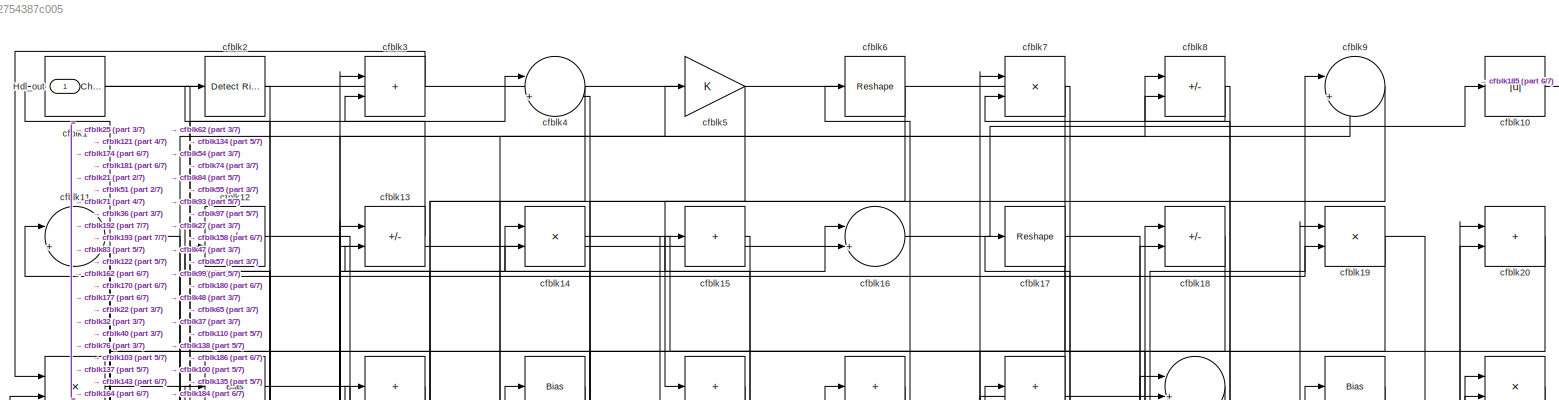
[diagram: root canvas - part 1/7, full width, top band]
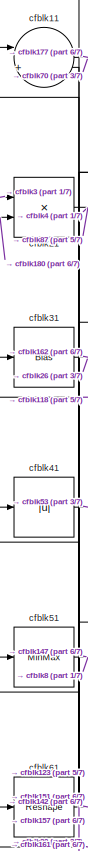
[diagram: root canvas - part 2/7, top left region]
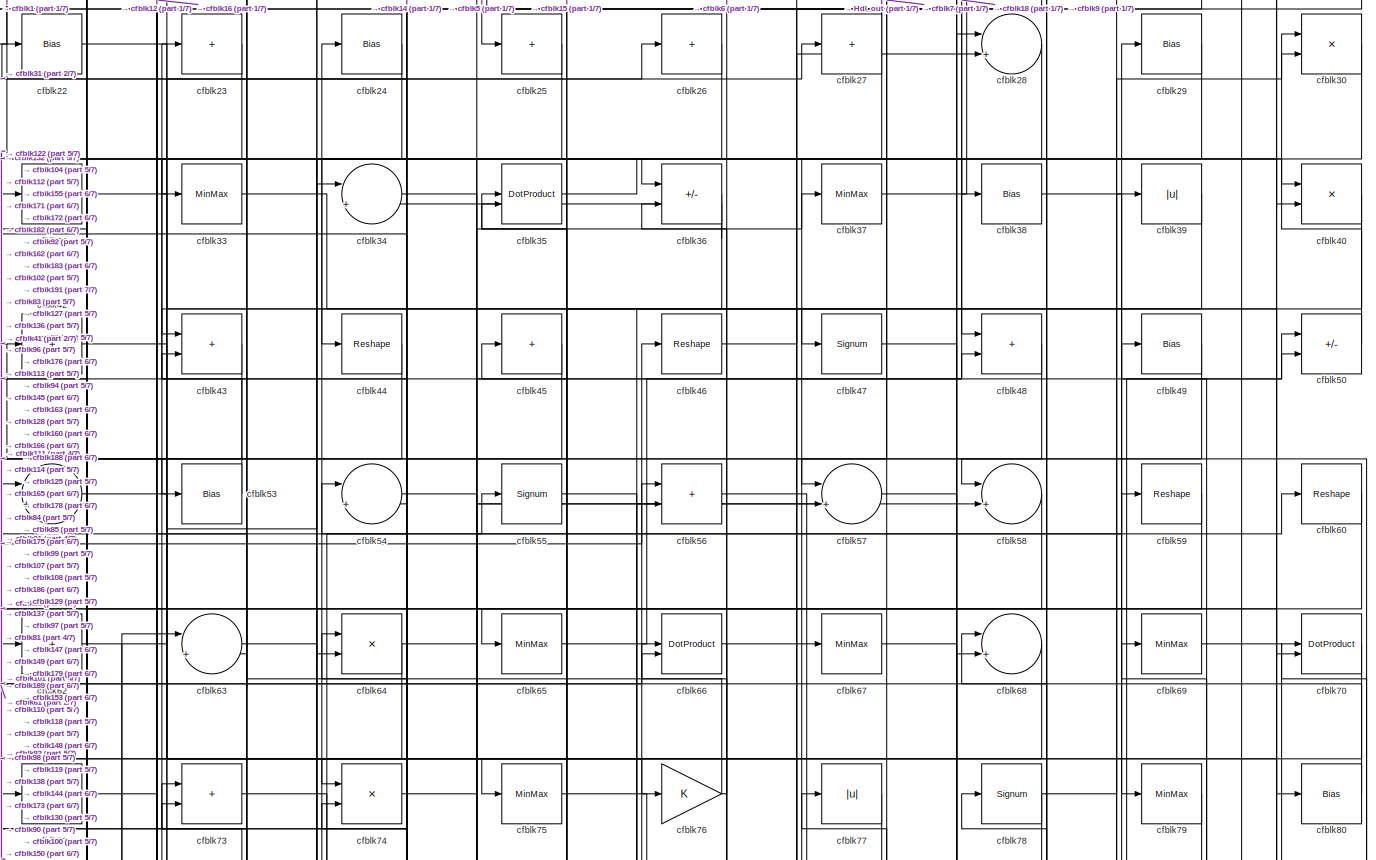
[diagram: root canvas - part 3/7, full width, top band]
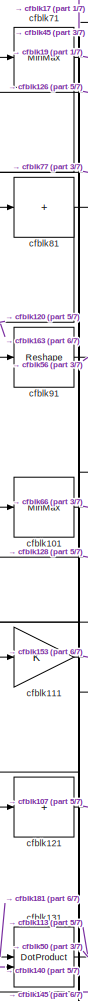
[diagram: root canvas - part 4/7, middle left region]
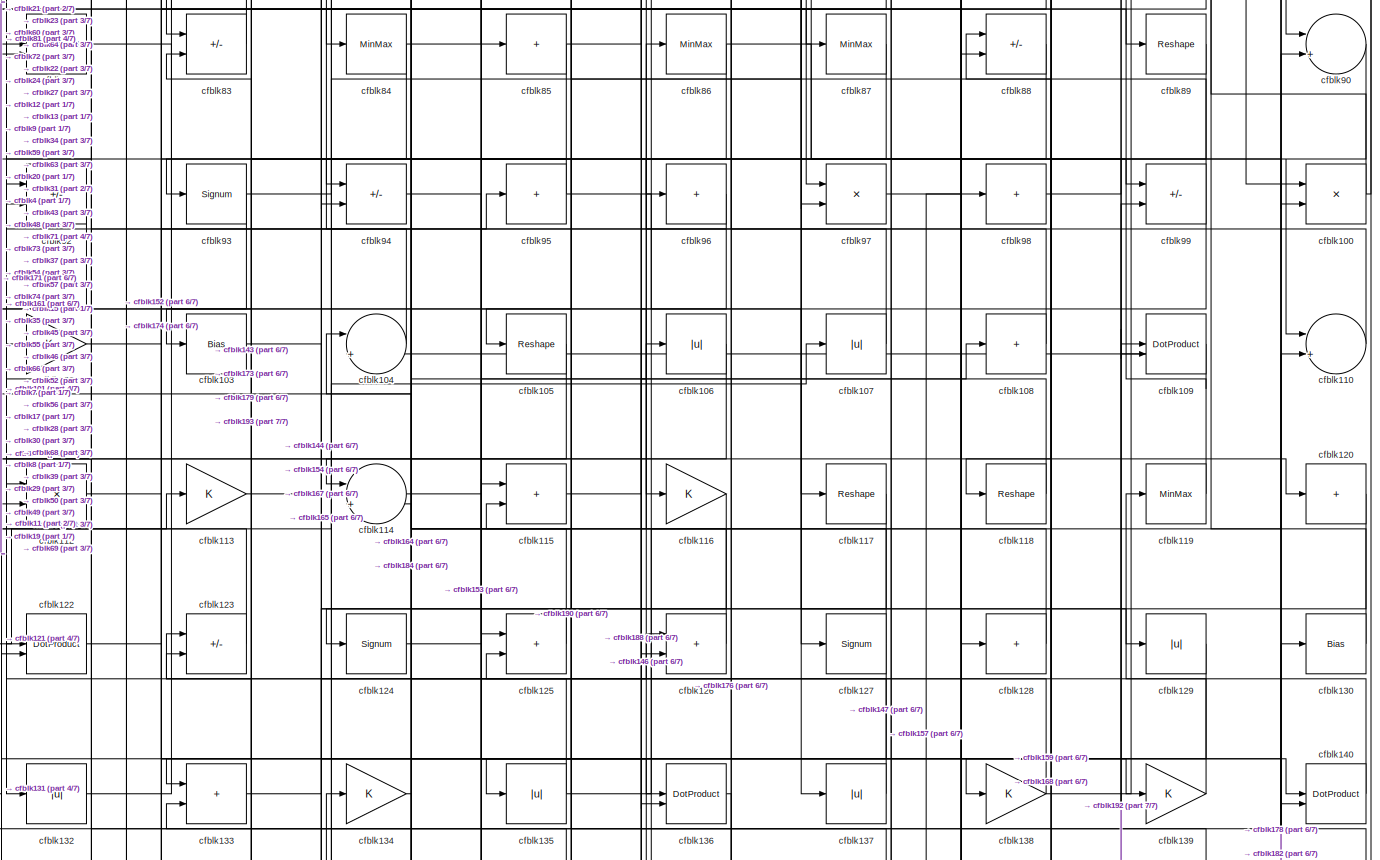
[diagram: root canvas - part 5/7, full width, middle band]
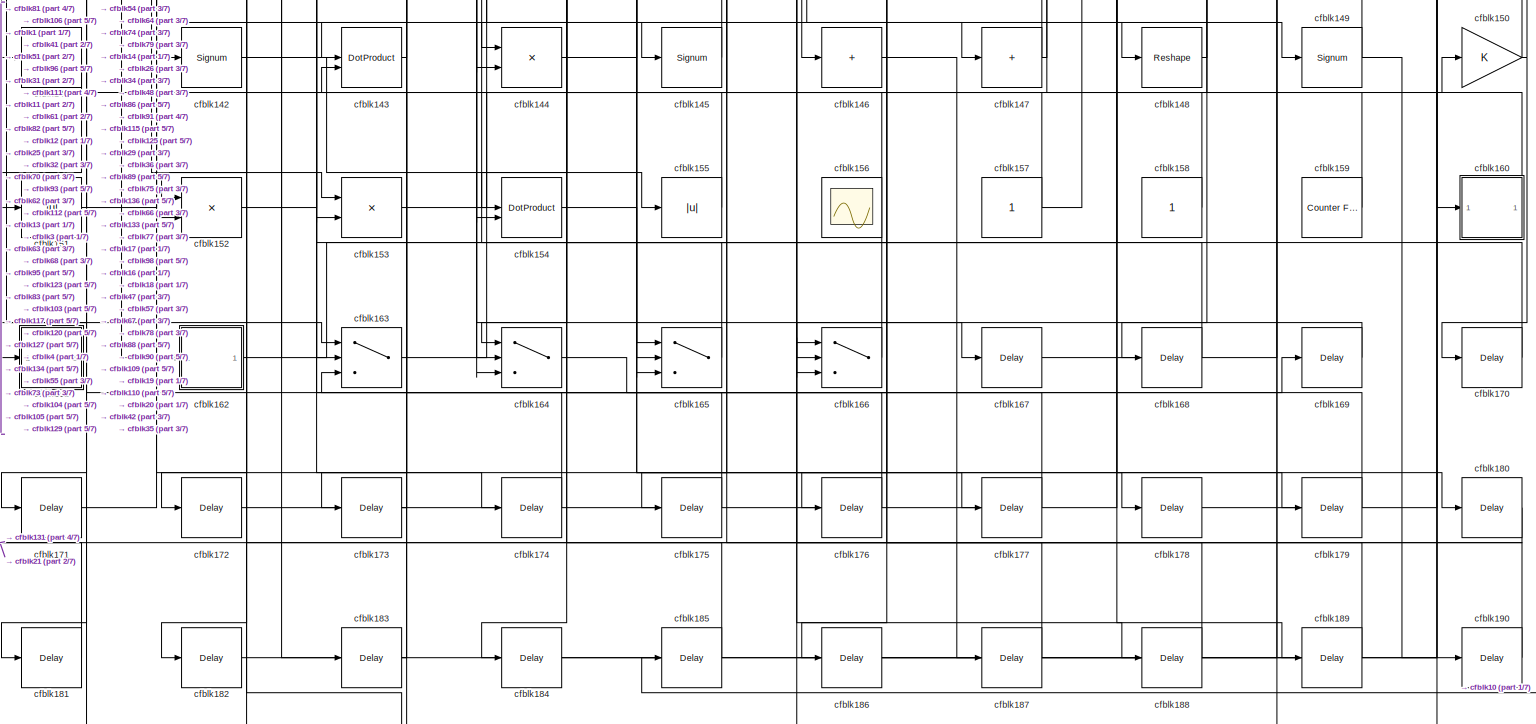
[diagram: root canvas - part 6/7, full width, bottom band]
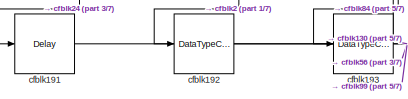
[diagram: root canvas - part 7/7, bottom left region]
MODEL slx_72754387c005
KIND model
CONFIG AbsTol = auto
CONFIG EnableMultiTasking = off
CONFIG FixedStep = auto
CONFIG MaxStep = auto
CONFIG MinStep = auto
CONFIG RelTol = 1e-3
CONFIG SampleTimeConstraint = Unconstrained
CONFIG SolverName = VariableStepAuto
CONFIG StartTime = 0.0
CONFIG StopTime = 10.0
BLOCK [Outport] Hdl_out
  OutDataTypeStr = uint8
BLOCK [Reference] cfblk1  REF=simulink/Logic and Bit
Operations/Detect
Change
  LibrarySourceBlock = hdlsllib/Logic and Bit\nOperations/Detect\nChange
  SourceBlock = simulink/Logic and Bit\nOperations/Detect\nChange
  SourceType = Detect Change
BLOCK [Abs] cfblk10
  OutDataTypeStr = uint8
  SaturateOnIntegerOverflow = off
BLOCK [Product] cfblk100
  Inputs = */
  OutDataTypeStr = uint8
  RndMeth = Zero
  SaturateOnIntegerOverflow = on
BLOCK [MinMax] cfblk101
  OutDataTypeStr = uint8
BLOCK [Gain] cfblk102
  OutDataTypeStr = uint8
BLOCK [Bias] cfblk103
  Bias = 0.0
  SaturateOnIntegerOverflow = off
BLOCK [Sum] cfblk104
  Inputs = |++
  OutDataTypeStr = uint8
BLOCK [Reshape] cfblk105
BLOCK [Abs] cfblk106
  OutDataTypeStr = uint8
  SaturateOnIntegerOverflow = off
BLOCK [Abs] cfblk107
  OutDataTypeStr = uint8
  SaturateOnIntegerOverflow = off
BLOCK [Sum] cfblk108
  IconShape = rectangular
  Inputs = +
  OutDataTypeStr = uint8
BLOCK [DotProduct] cfblk109
  OutDataTypeStr = uint8
BLOCK [Sum] cfblk11
  Inputs = |++
  OutDataTypeStr = uint8
BLOCK [Sum] cfblk110
  Inputs = |++
  OutDataTypeStr = uint8
BLOCK [Gain] cfblk111
  OutDataTypeStr = uint8
BLOCK [Product] cfblk112
  Inputs = */
  OutDataTypeStr = uint8
  RndMeth = Zero
  SaturateOnIntegerOverflow = on
BLOCK [Gain] cfblk113
  OutDataTypeStr = uint8
BLOCK [Sum] cfblk114
  Inputs = |++
  OutDataTypeStr = uint8
BLOCK [Sum] cfblk115
  IconShape = rectangular
  OutDataTypeStr = uint8
BLOCK [Gain] cfblk116
  OutDataTypeStr = uint8
BLOCK [Reshape] cfblk117
BLOCK [Reshape] cfblk118
BLOCK [MinMax] cfblk119
  OutDataTypeStr = uint8
BLOCK [Sum] cfblk12
  IconShape = rectangular
  Inputs = +-
  OutDataTypeStr = uint8
BLOCK [Sum] cfblk120
  IconShape = rectangular
  Inputs = +
  OutDataTypeStr = uint8
BLOCK [Sum] cfblk121
  IconShape = rectangular
  Inputs = +
  OutDataTypeStr = uint8
BLOCK [DotProduct] cfblk122
  OutDataTypeStr = uint8
BLOCK [Sum] cfblk123
  IconShape = rectangular
  Inputs = +-
  OutDataTypeStr = uint8
BLOCK [Signum] cfblk124
BLOCK [Sum] cfblk125
  IconShape = rectangular
  OutDataTypeStr = uint8
BLOCK [Sum] cfblk126
  IconShape = rectangular
  OutDataTypeStr = uint8
BLOCK [Signum] cfblk127
BLOCK [Sum] cfblk128
  IconShape = rectangular
  Inputs = +
  OutDataTypeStr = uint8
BLOCK [Abs] cfblk129
  OutDataTypeStr = uint8
  SaturateOnIntegerOverflow = off
BLOCK [Sum] cfblk13
  IconShape = rectangular
  Inputs = +-
  OutDataTypeStr = uint8
BLOCK [Bias] cfblk130
  Bias = 0.0
  SaturateOnIntegerOverflow = off
BLOCK [DotProduct] cfblk131
  OutDataTypeStr = uint8
BLOCK [Abs] cfblk132
  OutDataTypeStr = uint8
  SaturateOnIntegerOverflow = off
BLOCK [Sum] cfblk133
  IconShape = rectangular
  OutDataTypeStr = uint8
BLOCK [Gain] cfblk134
  OutDataTypeStr = uint8
BLOCK [Abs] cfblk135
  OutDataTypeStr = uint8
  SaturateOnIntegerOverflow = off
BLOCK [DotProduct] cfblk136
  OutDataTypeStr = uint8
BLOCK [Abs] cfblk137
  OutDataTypeStr = uint8
  SaturateOnIntegerOverflow = off
BLOCK [Gain] cfblk138
  OutDataTypeStr = uint8
BLOCK [Gain] cfblk139
  OutDataTypeStr = uint8
BLOCK [Product] cfblk14
  Inputs = */
  OutDataTypeStr = uint8
  RndMeth = Zero
  SaturateOnIntegerOverflow = on
BLOCK [DotProduct] cfblk140
  OutDataTypeStr = uint8
BLOCK [Sum] cfblk141
  IconShape = rectangular
  Inputs = +
  OutDataTypeStr = uint8
BLOCK [Signum] cfblk142
BLOCK [DotProduct] cfblk143
  OutDataTypeStr = uint8
BLOCK [Product] cfblk144
  Inputs = */
  OutDataTypeStr = uint8
  RndMeth = Zero
  SaturateOnIntegerOverflow = on
BLOCK [Signum] cfblk145
BLOCK [Sum] cfblk146
  IconShape = rectangular
  Inputs = +
  OutDataTypeStr = uint8
BLOCK [Sum] cfblk147
  IconShape = rectangular
  Inputs = +
  OutDataTypeStr = uint8
BLOCK [Reshape] cfblk148
BLOCK [Signum] cfblk149
BLOCK [Sum] cfblk15
  IconShape = rectangular
  Inputs = +
  OutDataTypeStr = uint8
BLOCK [Gain] cfblk150
  OutDataTypeStr = uint8
BLOCK [Abs] cfblk151
  OutDataTypeStr = uint8
  SaturateOnIntegerOverflow = off
BLOCK [Product] cfblk152
  Inputs = */
  OutDataTypeStr = uint8
  RndMeth = Zero
  SaturateOnIntegerOverflow = on
BLOCK [Product] cfblk153
  Inputs = */
  OutDataTypeStr = uint8
  RndMeth = Zero
  SaturateOnIntegerOverflow = on
BLOCK [DotProduct] cfblk154
  OutDataTypeStr = uint8
BLOCK [Abs] cfblk155
  OutDataTypeStr = uint8
  SaturateOnIntegerOverflow = off
BLOCK [Scope] cfblk156
  Floating = on
  NumInputPorts = 1
  ScopeSpecificationString = Simulink.scopes.TimeScopeBlockCfg('CurrentConfiguration', extmgr.ConfigurationSet(extmgr.Configuration('Core','General UI',true,'FigureColor',[0.156862745098039 0.156862745098039 0.156862745098039]),extmgr.Configuration('Core','Source UI',true),extmgr.Configuration('Sources','WiredSimulink',true,'DataLoggingVariableName','ScopeData1','DataLoggingSaveFormat','StructureWithTime','DataLoggingLimitDat...<+2713ch>
BLOCK [Constant] cfblk157
  OutDataTypeStr = uint8
  SampleTime = -1
BLOCK [Constant] cfblk158
  OutDataTypeStr = uint8
  SampleTime = -1
BLOCK [Reference] cfblk159  REF=hdlsllib/Sources/Counter
Free-Running
  SourceBlock = hdlsllib/Sources/Counter\nFree-Running
  SourceType = Counter Free-Running
BLOCK [Sum] cfblk16
  Inputs = |++
  OutDataTypeStr = uint8
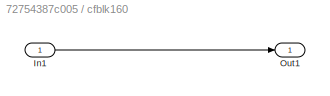
BLOCK [SubSystem] cfblk160
  LibrarySourceBlock = hdlsllib/Ports &\nSubsystems/Subsystem
BLOCK [Inport] cfblk160/In1
BLOCK [Outport] cfblk160/Out1
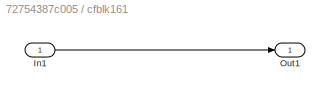
BLOCK [SubSystem] cfblk161
  LibrarySourceBlock = hdlsllib/Ports &\nSubsystems/Subsystem
BLOCK [Inport] cfblk161/In1
BLOCK [Outport] cfblk161/Out1
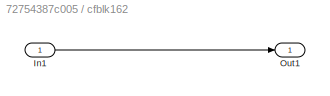
BLOCK [SubSystem] cfblk162
  LibrarySourceBlock = hdlsllib/Ports &\nSubsystems/Subsystem
BLOCK [Inport] cfblk162/In1
BLOCK [Outport] cfblk162/Out1
BLOCK [Switch] cfblk163
  InputSameDT = off
  OutDataTypeStr = uint8
  SaturateOnIntegerOverflow = off
BLOCK [Switch] cfblk164
  InputSameDT = off
  OutDataTypeStr = uint8
  SaturateOnIntegerOverflow = off
BLOCK [Switch] cfblk165
  InputSameDT = off
  OutDataTypeStr = uint8
  SaturateOnIntegerOverflow = off
BLOCK [Switch] cfblk166
  InputSameDT = off
  OutDataTypeStr = uint8
  SaturateOnIntegerOverflow = off
BLOCK [Delay] cfblk167
  InputPortMap = u0
  SampleTime = 1
BLOCK [Delay] cfblk168
  InputPortMap = u0
  SampleTime = 1
BLOCK [Delay] cfblk169
  InputPortMap = u0
  SampleTime = 1
BLOCK [Reshape] cfblk17
BLOCK [Delay] cfblk170
  InputPortMap = u0
  SampleTime = 1
BLOCK [Delay] cfblk171
  InputPortMap = u0
  SampleTime = 1
BLOCK [Delay] cfblk172
  InputPortMap = u0
  SampleTime = 1
BLOCK [Delay] cfblk173
  InputPortMap = u0
  SampleTime = 1
BLOCK [Delay] cfblk174
  InputPortMap = u0
  SampleTime = 1
BLOCK [Delay] cfblk175
  InputPortMap = u0
  SampleTime = 1
BLOCK [Delay] cfblk176
  InputPortMap = u0
  SampleTime = 1
BLOCK [Delay] cfblk177
  InputPortMap = u0
  SampleTime = 1
BLOCK [Delay] cfblk178
  InputPortMap = u0
  SampleTime = 1
BLOCK [Delay] cfblk179
  InputPortMap = u0
  SampleTime = 1
BLOCK [Sum] cfblk18
  IconShape = rectangular
  Inputs = +-
  OutDataTypeStr = uint8
BLOCK [Delay] cfblk180
  InputPortMap = u0
  SampleTime = 1
BLOCK [Delay] cfblk181
  InputPortMap = u0
  SampleTime = 1
BLOCK [Delay] cfblk182
  InputPortMap = u0
  SampleTime = 1
BLOCK [Delay] cfblk183
  InputPortMap = u0
  SampleTime = 1
BLOCK [Delay] cfblk184
  InputPortMap = u0
  SampleTime = 1
BLOCK [Delay] cfblk185
  InputPortMap = u0
  SampleTime = 1
BLOCK [Delay] cfblk186
  InputPortMap = u0
  SampleTime = 1
BLOCK [Delay] cfblk187
  InputPortMap = u0
  SampleTime = 1
BLOCK [Delay] cfblk188
  InputPortMap = u0
  SampleTime = 1
BLOCK [Delay] cfblk189
  InputPortMap = u0
  SampleTime = 1
BLOCK [Product] cfblk19
  Inputs = */
  OutDataTypeStr = uint8
  RndMeth = Zero
  SaturateOnIntegerOverflow = on
BLOCK [Delay] cfblk190
  InputPortMap = u0
  SampleTime = 1
BLOCK [Delay] cfblk191
  InputPortMap = u0
  SampleTime = 1
BLOCK [DataTypeConversion] cfblk192
  OutDataTypeStr = uint8
  RndMeth = Floor
  SaturateOnIntegerOverflow = off
BLOCK [DataTypeConversion] cfblk193
  OutDataTypeStr = uint8
  RndMeth = Floor
  SaturateOnIntegerOverflow = off
BLOCK [Reference] cfblk2  REF=hdlsllib/Logic and Bit
Operations/Detect Rise
Nonnegative
  SourceBlock = hdlsllib/Logic and Bit\nOperations/Detect Rise\nNonnegative
  SourceType = Detect Rise Nonnegative
BLOCK [Sum] cfblk20
  IconShape = rectangular
  OutDataTypeStr = uint8
BLOCK [Product] cfblk21
  Inputs = */
  OutDataTypeStr = uint8
  RndMeth = Zero
  SaturateOnIntegerOverflow = on
BLOCK [Bias] cfblk22
  Bias = 0.0
  SaturateOnIntegerOverflow = off
BLOCK [Sum] cfblk23
  IconShape = rectangular
  Inputs = +
  OutDataTypeStr = uint8
BLOCK [Bias] cfblk24
  Bias = 0.0
  SaturateOnIntegerOverflow = off
BLOCK [Sum] cfblk25
  IconShape = rectangular
  Inputs = +
  OutDataTypeStr = uint8
BLOCK [Sum] cfblk26
  IconShape = rectangular
  Inputs = +
  OutDataTypeStr = uint8
BLOCK [Sum] cfblk27
  IconShape = rectangular
  Inputs = +
  OutDataTypeStr = uint8
BLOCK [Sum] cfblk28
  Inputs = |++
  OutDataTypeStr = uint8
BLOCK [Bias] cfblk29
  Bias = 0.0
  SaturateOnIntegerOverflow = off
BLOCK [Sum] cfblk3
  IconShape = rectangular
  OutDataTypeStr = uint8
BLOCK [Product] cfblk30
  Inputs = */
  OutDataTypeStr = uint8
  RndMeth = Zero
  SaturateOnIntegerOverflow = on
BLOCK [Bias] cfblk31
  Bias = 0.0
  SaturateOnIntegerOverflow = off
BLOCK [Sum] cfblk32
  IconShape = rectangular
  Inputs = +
  OutDataTypeStr = uint8
BLOCK [MinMax] cfblk33
  OutDataTypeStr = uint8
BLOCK [Sum] cfblk34
  Inputs = |++
  OutDataTypeStr = uint8
BLOCK [DotProduct] cfblk35
  OutDataTypeStr = uint8
BLOCK [Sum] cfblk36
  IconShape = rectangular
  Inputs = +-
  OutDataTypeStr = uint8
BLOCK [MinMax] cfblk37
  OutDataTypeStr = uint8
BLOCK [Bias] cfblk38
  Bias = 0.0
  SaturateOnIntegerOverflow = off
BLOCK [Abs] cfblk39
  OutDataTypeStr = uint8
  SaturateOnIntegerOverflow = off
BLOCK [Sum] cfblk4
  Inputs = |++
  OutDataTypeStr = uint8
BLOCK [Product] cfblk40
  Inputs = */
  OutDataTypeStr = uint8
  RndMeth = Zero
  SaturateOnIntegerOverflow = on
BLOCK [Abs] cfblk41
  OutDataTypeStr = uint8
  SaturateOnIntegerOverflow = off
BLOCK [Sum] cfblk42
  IconShape = rectangular
  Inputs = +
  OutDataTypeStr = uint8
BLOCK [Sum] cfblk43
  IconShape = rectangular
  OutDataTypeStr = uint8
BLOCK [Reshape] cfblk44
BLOCK [Sum] cfblk45
  IconShape = rectangular
  Inputs = +
  OutDataTypeStr = uint8
BLOCK [Reshape] cfblk46
BLOCK [Signum] cfblk47
BLOCK [Sum] cfblk48
  IconShape = rectangular
  OutDataTypeStr = uint8
BLOCK [Bias] cfblk49
  Bias = 0.0
  SaturateOnIntegerOverflow = off
BLOCK [Gain] cfblk5
  OutDataTypeStr = uint8
BLOCK [Sum] cfblk50
  IconShape = rectangular
  Inputs = +-
  OutDataTypeStr = uint8
BLOCK [MinMax] cfblk51
  OutDataTypeStr = uint8
BLOCK [Sum] cfblk52
  Inputs = |++
  OutDataTypeStr = uint8
BLOCK [Bias] cfblk53
  Bias = 0.0
  SaturateOnIntegerOverflow = off
BLOCK [Sum] cfblk54
  Inputs = |++
  OutDataTypeStr = uint8
BLOCK [Signum] cfblk55
BLOCK [Sum] cfblk56
  IconShape = rectangular
  OutDataTypeStr = uint8
BLOCK [Sum] cfblk57
  Inputs = |++
  OutDataTypeStr = uint8
BLOCK [Sum] cfblk58
  Inputs = |++
  OutDataTypeStr = uint8
BLOCK [Reshape] cfblk59
BLOCK [Reshape] cfblk6
BLOCK [Reshape] cfblk60
BLOCK [Reshape] cfblk61
BLOCK [Sum] cfblk62
  IconShape = rectangular
  Inputs = +
  OutDataTypeStr = uint8
BLOCK [Sum] cfblk63
  Inputs = |++
  OutDataTypeStr = uint8
BLOCK [Product] cfblk64
  Inputs = */
  OutDataTypeStr = uint8
  RndMeth = Zero
  SaturateOnIntegerOverflow = on
BLOCK [MinMax] cfblk65
  OutDataTypeStr = uint8
BLOCK [DotProduct] cfblk66
  OutDataTypeStr = uint8
BLOCK [MinMax] cfblk67
  OutDataTypeStr = uint8
BLOCK [Sum] cfblk68
  Inputs = |++
  OutDataTypeStr = uint8
BLOCK [MinMax] cfblk69
  OutDataTypeStr = uint8
BLOCK [Product] cfblk7
  Inputs = */
  OutDataTypeStr = uint8
  RndMeth = Zero
  SaturateOnIntegerOverflow = on
BLOCK [DotProduct] cfblk70
  OutDataTypeStr = uint8
BLOCK [MinMax] cfblk71
  OutDataTypeStr = uint8
BLOCK [Sum] cfblk72
  IconShape = rectangular
  Inputs = +
  OutDataTypeStr = uint8
BLOCK [Sum] cfblk73
  IconShape = rectangular
  OutDataTypeStr = uint8
BLOCK [Product] cfblk74
  Inputs = */
  OutDataTypeStr = uint8
  RndMeth = Zero
  SaturateOnIntegerOverflow = on
BLOCK [MinMax] cfblk75
  OutDataTypeStr = uint8
BLOCK [Gain] cfblk76
  OutDataTypeStr = uint8
BLOCK [Abs] cfblk77
  OutDataTypeStr = uint8
  SaturateOnIntegerOverflow = off
BLOCK [Signum] cfblk78
BLOCK [MinMax] cfblk79
  OutDataTypeStr = uint8
BLOCK [Sum] cfblk8
  IconShape = rectangular
  Inputs = +-
  OutDataTypeStr = uint8
BLOCK [Bias] cfblk80
  Bias = 0.0
  SaturateOnIntegerOverflow = off
BLOCK [Sum] cfblk81
  IconShape = rectangular
  Inputs = +
  OutDataTypeStr = uint8
BLOCK [DotProduct] cfblk82
  OutDataTypeStr = uint8
BLOCK [Sum] cfblk83
  IconShape = rectangular
  Inputs = +-
  OutDataTypeStr = uint8
BLOCK [MinMax] cfblk84
  OutDataTypeStr = uint8
BLOCK [Sum] cfblk85
  IconShape = rectangular
  Inputs = +
  OutDataTypeStr = uint8
BLOCK [MinMax] cfblk86
  OutDataTypeStr = uint8
BLOCK [MinMax] cfblk87
  OutDataTypeStr = uint8
BLOCK [Sum] cfblk88
  IconShape = rectangular
  Inputs = +-
  OutDataTypeStr = uint8
BLOCK [Reshape] cfblk89
BLOCK [Sum] cfblk9
  Inputs = |++
  OutDataTypeStr = uint8
BLOCK [Sum] cfblk90
  Inputs = |++
  OutDataTypeStr = uint8
BLOCK [Reshape] cfblk91
BLOCK [Sum] cfblk92
  IconShape = rectangular
  Inputs = +-
  OutDataTypeStr = uint8
BLOCK [Signum] cfblk93
BLOCK [Sum] cfblk94
  IconShape = rectangular
  Inputs = +-
  OutDataTypeStr = uint8
BLOCK [Sum] cfblk95
  IconShape = rectangular
  Inputs = +
  OutDataTypeStr = uint8
BLOCK [Sum] cfblk96
  IconShape = rectangular
  Inputs = +
  OutDataTypeStr = uint8
BLOCK [Product] cfblk97
  Inputs = */
  OutDataTypeStr = uint8
  RndMeth = Zero
  SaturateOnIntegerOverflow = on
BLOCK [Sum] cfblk98
  IconShape = rectangular
  Inputs = +
  OutDataTypeStr = uint8
BLOCK [Sum] cfblk99
  IconShape = rectangular
  Inputs = +-
  OutDataTypeStr = uint8
NET cfblk100:1 -> cfblk49:1, cfblk58:1
LINE cfblk101:1 -> cfblk66:2
LINE cfblk102:1 -> cfblk60:1
LINE cfblk103:1 -> cfblk167:1
LINE cfblk104:1 -> cfblk72:1
LINE cfblk105:1 -> cfblk154:1
LINE cfblk106:1 -> cfblk141:1
LINE cfblk107:1 -> cfblk46:1
LINE cfblk108:1 -> cfblk66:1
LINE cfblk109:1 -> cfblk104:2
LINE cfblk10:1 -> cfblk185:1
NET cfblk110:1 -> cfblk24:1, cfblk8:2
LINE cfblk111:1 -> cfblk153:1
LINE cfblk112:1 -> cfblk174:1
LINE cfblk113:1 -> cfblk34:1
LINE cfblk114:1 -> cfblk37:1
LINE cfblk115:1 -> cfblk108:1
LINE cfblk116:1 -> cfblk124:1
LINE cfblk117:1 -> cfblk144:2
LINE cfblk118:1 -> cfblk31:1
LINE cfblk119:1 -> cfblk29:1
NET cfblk11:1 -> cfblk177:1, cfblk70:2
LINE cfblk120:1 -> cfblk164:2
LINE cfblk121:1 -> cfblk107:1
LINE cfblk122:1 -> cfblk9:2
NET cfblk123:1 -> cfblk102:1, cfblk11:2
LINE cfblk124:1 -> cfblk106:1
LINE cfblk125:1 -> cfblk22:1
LINE cfblk126:1 -> cfblk71:1
NET cfblk127:1 -> cfblk154:2, cfblk73:1
NET cfblk128:1 -> cfblk101:1, cfblk43:2, cfblk86:1
LINE cfblk129:1 -> cfblk164:1
NET cfblk12:1 -> cfblk40:2, cfblk76:1
LINE cfblk130:1 -> cfblk69:1
NET cfblk131:1 -> cfblk113:1, cfblk50:2
LINE cfblk132:1 -> cfblk27:1
LINE cfblk133:1 -> cfblk126:1
NET cfblk134:1 -> cfblk184:1, cfblk4:2
NET cfblk135:1 -> cfblk114:2, cfblk20:1
LINE cfblk136:1 -> cfblk176:1
LINE cfblk137:1 -> cfblk13:2
NET cfblk138:1 -> cfblk35:1, cfblk50:1
NET cfblk139:1 -> cfblk122:1, cfblk68:1
LINE cfblk13:1 -> cfblk3:2
LINE cfblk140:1 -> cfblk119:1
LINE cfblk141:1 -> cfblk151:1
LINE cfblk142:1 -> cfblk155:1
LINE cfblk143:1 -> cfblk123:1
LINE cfblk144:1 -> cfblk48:2
LINE cfblk145:1 -> cfblk91:1
LINE cfblk146:1 -> cfblk187:1
NET cfblk147:1 -> cfblk133:2, cfblk77:1
LINE cfblk148:1 -> cfblk78:1
NET cfblk149:1 -> cfblk190:1, cfblk42:1
NET cfblk14:1 -> cfblk180:1, cfblk48:1
NET cfblk150:1 -> cfblk170:1, cfblk35:2, cfblk70:1
NET cfblk151:1 -> cfblk150:1, cfblk41:1
LINE cfblk152:1 -> cfblk95:1
LINE cfblk153:1 -> cfblk115:1
LINE cfblk154:1 -> cfblk165:1
LINE cfblk155:1 -> cfblk32:1
NET cfblk157:1 -> cfblk51:1, cfblk98:1
LINE cfblk158:1 -> cfblk17:1
NET cfblk159:1 -> cfblk115:2, cfblk88:1
LINE cfblk15:1 -> cfblk135:1
LINE cfblk160/In1:1 -> cfblk160/Out1:1
LINE cfblk160:1 -> cfblk64:1
LINE cfblk161/In1:1 -> cfblk161/Out1:1
LINE cfblk161:1 -> cfblk11:1
LINE cfblk162/In1:1 -> cfblk162/Out1:1
NET cfblk162:1 -> cfblk16:1, cfblk18:2, cfblk63:1
NET cfblk163:1 -> cfblk143:2, cfblk55:1
LINE cfblk164:1 -> cfblk169:1
LINE cfblk165:1 -> cfblk134:1
LINE cfblk166:1 -> cfblk54:1
LINE cfblk167:1 -> cfblk109:1
LINE cfblk168:1 -> cfblk104:1
LINE cfblk169:1 -> cfblk166:2
LINE cfblk16:1 -> cfblk10:1
LINE cfblk170:1 -> cfblk13:1
LINE cfblk171:1 -> cfblk82:1
LINE cfblk172:1 -> cfblk68:2
LINE cfblk173:1 -> cfblk123:2
LINE cfblk174:1 -> cfblk1:1
LINE cfblk175:1 -> cfblk54:2
LINE cfblk176:1 -> cfblk73:2
LINE cfblk177:1 -> cfblk3:1
LINE cfblk178:1 -> cfblk90:2
LINE cfblk179:1 -> cfblk83:2
NET cfblk17:1 -> cfblk121:1, cfblk99:1
LINE cfblk180:1 -> cfblk21:2
LINE cfblk181:1 -> cfblk131:1
LINE cfblk182:1 -> cfblk110:2
LINE cfblk183:1 -> cfblk163:3
LINE cfblk184:1 -> cfblk20:2
LINE cfblk185:1 -> cfblk12:2
LINE cfblk186:1 -> cfblk19:1
LINE cfblk187:1 -> cfblk166:1
LINE cfblk188:1 -> cfblk74:2
LINE cfblk189:1 -> cfblk36:2
LINE cfblk18:1 -> cfblk181:1
LINE cfblk190:1 -> cfblk125:2
LINE cfblk191:1 -> cfblk56:2
NET cfblk192:1 -> cfblk130:1, cfblk99:2
LINE cfblk193:1 -> cfblk2:1
NET cfblk19:1 -> cfblk100:1, cfblk97:2
LINE cfblk1:1 -> cfblk36:1
LINE cfblk20:1 -> cfblk84:1
NET cfblk21:1 -> cfblk4:1, cfblk87:1
NET cfblk22:1 -> cfblk127:1, cfblk136:2, cfblk16:2, cfblk88:2, cfblk96:1
LINE cfblk23:1 -> cfblk122:2
NET cfblk24:1 -> cfblk191:1, cfblk83:1
NET cfblk25:1 -> cfblk182:1, cfblk33:1
NET cfblk26:1 -> cfblk165:3, cfblk44:1
NET cfblk27:1 -> Hdl_out:1, cfblk97:1
LINE cfblk28:1 -> cfblk64:2
LINE cfblk29:1 -> cfblk175:1
LINE cfblk2:1 -> cfblk192:1
LINE cfblk30:1 -> cfblk118:1
NET cfblk31:1 -> cfblk162:1, cfblk26:1
NET cfblk32:1 -> cfblk14:2, cfblk67:1
NET cfblk33:1 -> cfblk40:1, cfblk80:1
LINE cfblk34:1 -> cfblk178:1
LINE cfblk35:1 -> cfblk38:1
NET cfblk36:1 -> cfblk166:3, cfblk34:2
LINE cfblk37:1 -> cfblk9:1
LINE cfblk38:1 -> cfblk79:1
LINE cfblk39:1 -> cfblk43:1
LINE cfblk3:1 -> cfblk21:1
LINE cfblk40:1 -> cfblk65:1
LINE cfblk41:1 -> cfblk53:1
LINE cfblk42:1 -> cfblk160:1
LINE cfblk43:1 -> cfblk52:2
LINE cfblk44:1 -> cfblk62:1
LINE cfblk45:1 -> cfblk111:1
LINE cfblk46:1 -> cfblk28:2
LINE cfblk47:1 -> cfblk189:1
LINE cfblk48:1 -> cfblk114:1
LINE cfblk49:1 -> cfblk92:1
NET cfblk4:1 -> cfblk143:1, cfblk164:3
LINE cfblk50:1 -> cfblk30:1
NET cfblk51:1 -> cfblk147:1, cfblk8:1
LINE cfblk52:1 -> cfblk137:1
LINE cfblk53:1 -> cfblk23:1
NET cfblk54:1 -> cfblk125:1, cfblk14:1
NET cfblk55:1 -> cfblk100:2, cfblk15:1
LINE cfblk56:1 -> cfblk128:1
LINE cfblk57:1 -> cfblk149:1
LINE cfblk58:1 -> cfblk75:1
NET cfblk59:1 -> cfblk112:1, cfblk63:2, cfblk94:2
LINE cfblk5:1 -> cfblk25:1
LINE cfblk60:1 -> cfblk132:1
LINE cfblk61:1 -> cfblk142:1
NET cfblk62:1 -> cfblk183:1, cfblk5:1
LINE cfblk63:1 -> cfblk136:1
NET cfblk64:1 -> cfblk59:1, cfblk82:2
LINE cfblk65:1 -> cfblk18:1
NET cfblk66:1 -> cfblk129:1, cfblk186:1
LINE cfblk67:1 -> cfblk179:1
LINE cfblk68:1 -> cfblk163:2
LINE cfblk69:1 -> cfblk90:1
LINE cfblk6:1 -> cfblk74:1
NET cfblk70:1 -> cfblk171:1, cfblk172:1
NET cfblk71:1 -> cfblk131:2, cfblk140:2, cfblk19:2
LINE cfblk72:1 -> cfblk139:1
LINE cfblk73:1 -> cfblk145:1
NET cfblk74:1 -> cfblk58:2, cfblk85:1
LINE cfblk75:1 -> cfblk148:1
NET cfblk76:1 -> cfblk52:1, cfblk6:1
LINE cfblk77:1 -> cfblk81:1
NET cfblk78:1 -> cfblk153:2, cfblk30:2
NET cfblk79:1 -> cfblk144:1, cfblk173:1
NET cfblk7:1 -> cfblk47:1, cfblk57:1
LINE cfblk80:1 -> cfblk61:1
NET cfblk81:1 -> cfblk120:1, cfblk163:1
LINE cfblk82:1 -> cfblk116:1
LINE cfblk83:1 -> cfblk12:1
NET cfblk84:1 -> cfblk193:1, cfblk57:2
NET cfblk85:1 -> cfblk89:1, cfblk93:1
NET cfblk86:1 -> cfblk105:1, cfblk109:2, cfblk165:2
LINE cfblk87:1 -> cfblk133:1
LINE cfblk88:1 -> cfblk152:2
LINE cfblk89:1 -> cfblk146:1
NET cfblk8:1 -> cfblk138:1, cfblk7:2
NET cfblk90:1 -> cfblk110:1, cfblk168:1
LINE cfblk91:1 -> cfblk56:1
LINE cfblk92:1 -> cfblk112:2
NET cfblk93:1 -> cfblk152:1, cfblk7:1
LINE cfblk94:1 -> cfblk140:1
NET cfblk95:1 -> cfblk117:1, cfblk188:1, cfblk94:1
NET cfblk96:1 -> cfblk161:1, cfblk92:2
LINE cfblk97:1 -> cfblk28:1
LINE cfblk98:1 -> cfblk39:1
NET cfblk99:1 -> cfblk126:2, cfblk45:1
LINE cfblk9:1 -> cfblk103:1
note: NET lines group one-source signal fan-out (src -> all destinations, sorted); 1:1 wires keep LINE
